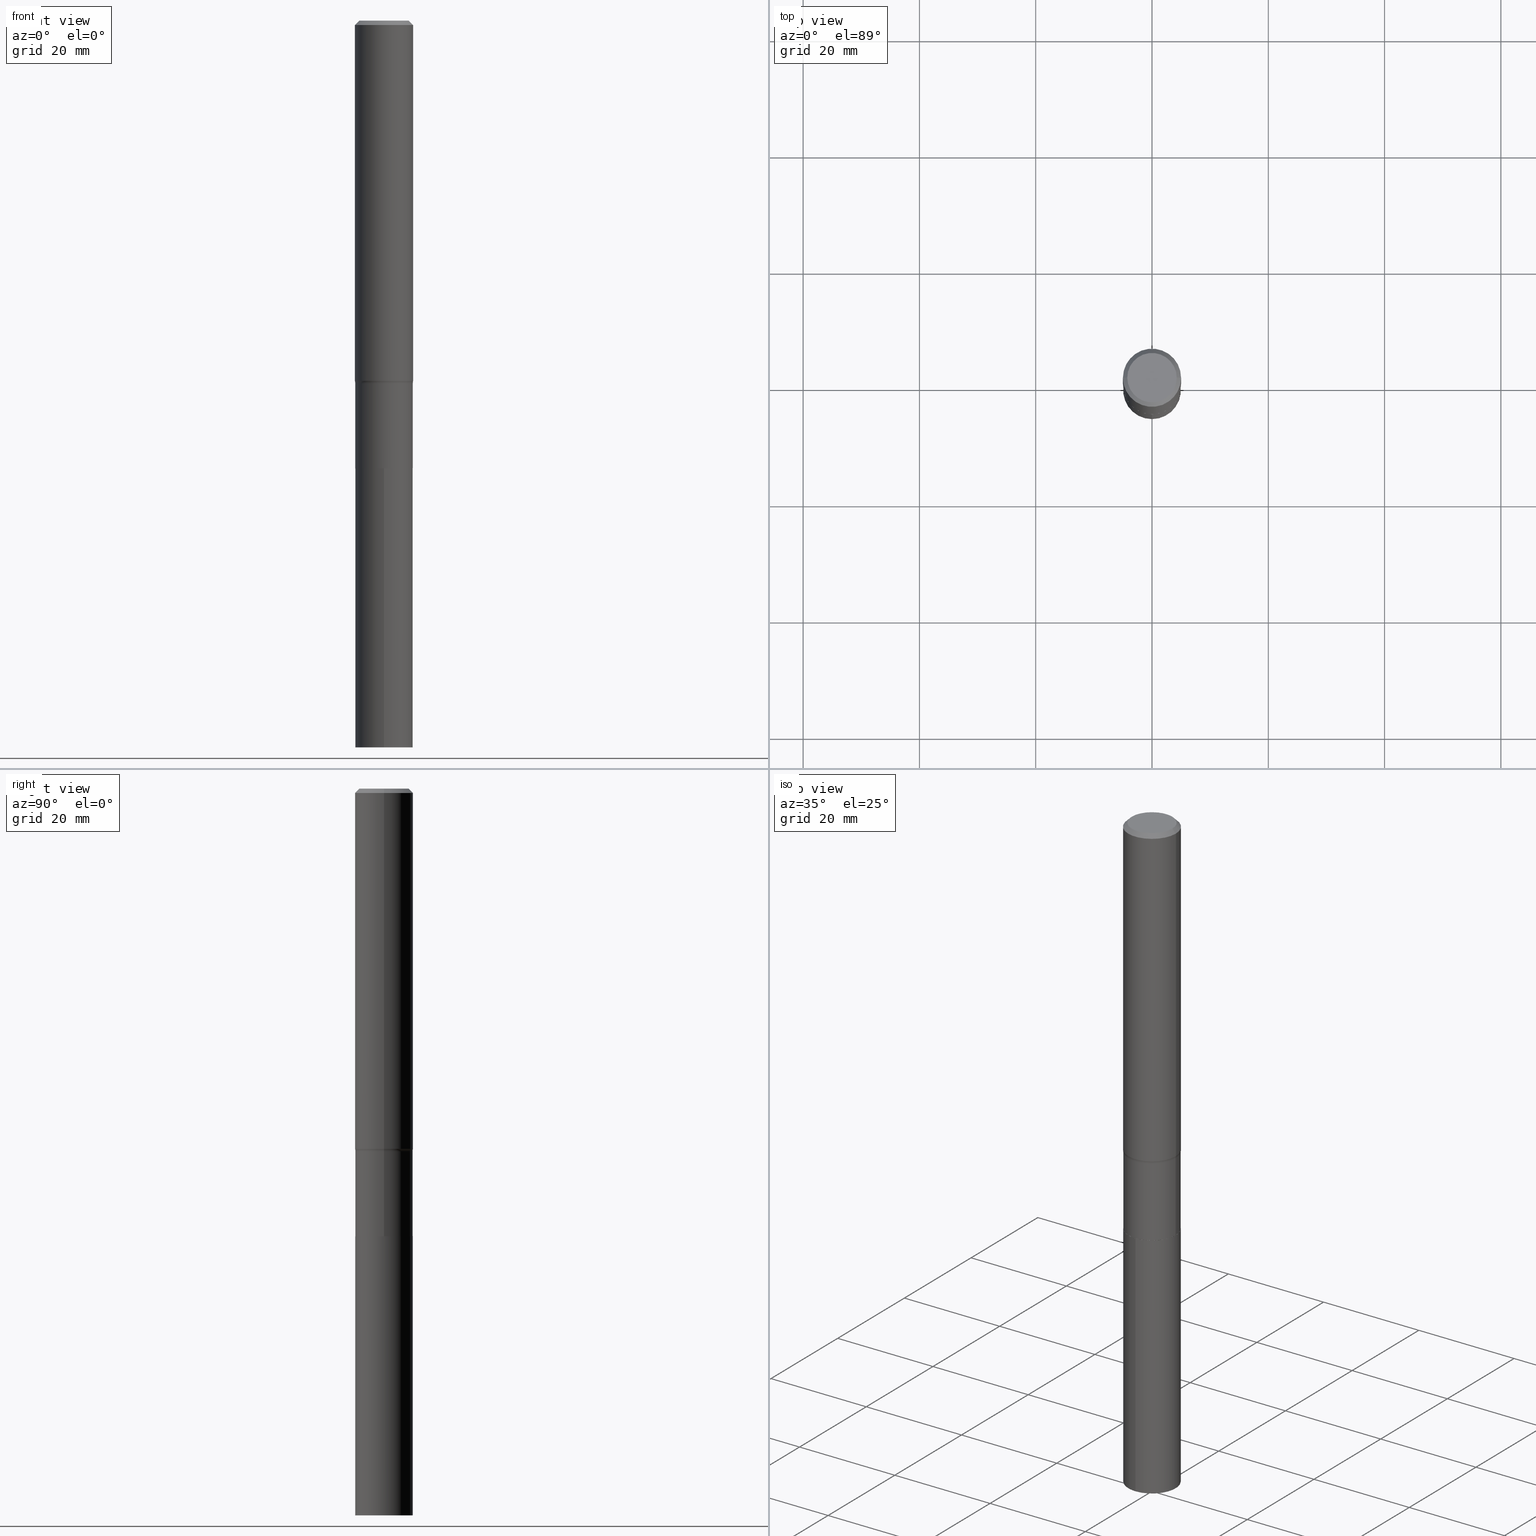
[diagram: canonical four-view strip — front | top / right | iso, engineering-drawing reading convention]
A machine part, canonical four-view strip (front | top / right | iso — engineering-drawing reading convention). The complete STEP part file that produces these views, byte-faithful:
ISO-10303-21;
HEADER;
FILE_DESCRIPTION (( 'STEP AP203' ),
    '1' );
FILE_NAME ('67887.STEP',
    '2024-04-19T16:55:54',
    ( '' ),
    ( '' ),
    'SwSTEP 2.0',
    'SolidWorks 2023',
    '' );
FILE_SCHEMA (( 'CONFIG_CONTROL_DESIGN' ));
ENDSEC;

DATA;
#1 = DIRECTION ( 'NONE',  ( -2.445468806185136597E-29, 3.491481338843145583E-15, 1.000000000000000000 ) ) ;
#2 = EDGE_CURVE ( 'NONE', #307, #241, #297, .T. ) ;
#3 = AXIS2_PLACEMENT_3D ( 'NONE', #427, #332, #94 ) ;
#4 = AXIS2_PLACEMENT_3D ( 'NONE', #388, #106, #422 ) ;
#5 = DIRECTION ( 'NONE',  ( 1.000000000000000000, -6.982962677686259611E-15, 0.000000000000000000 ) ) ;
#6 = DIRECTION ( 'NONE',  ( -2.445468806185136597E-29, 3.491481338843145583E-15, 1.000000000000000000 ) ) ;
#7 = FACE_OUTER_BOUND ( 'NONE', #313, .T. ) ;
#8 = EDGE_CURVE ( 'NONE', #36, #115, #276, .T. ) ;
#9 = DIRECTION ( 'NONE',  ( -0.7071067811865453523, 2.468850131082234184E-15, -0.7071067811865496822 ) ) ;
#10 = CONICAL_SURFACE ( 'NONE', #303, 0.1943999999999999895, 0.7853981633972775267 ) ;
#11 = LOCAL_TIME ( 12, 55, 54.00000000000000000, #317 ) ;
#12 = DIRECTION ( 'NONE',  ( -2.445468806185136597E-29, 3.491481338843145583E-15, 1.000000000000000000 ) ) ;
#13 = EDGE_CURVE ( 'NONE', #270, #416, #368, .T. ) ;
#14 = FACE_OUTER_BOUND ( 'NONE', #136, .T. ) ;
#15 = ORIENTED_EDGE ( 'NONE', *, *, #32, .F. ) ;
#16 = CC_DESIGN_PERSON_AND_ORGANIZATION_ASSIGNMENT ( #352, #178, ( #121 ) ) ;
#17 = DIRECTION ( 'NONE',  ( -1.000000000000000000, 7.105427357600997914E-15, 0.000000000000000000 ) ) ;
#18 = APPROVAL_DATE_TIME ( #202, #286 ) ;
#19 = VECTOR ( 'NONE', #185, 39.37007874015748143 ) ;
#20 = ORIENTED_EDGE ( 'NONE', *, *, #2, .T. ) ;
#21 = ORIENTED_EDGE ( 'NONE', *, *, #409, .F. ) ;
#22 = CARTESIAN_POINT ( 'NONE',  ( 0.000000000000000000, 0.000000000000000000, 0.000000000000000000 ) ) ;
#23 = CARTESIAN_POINT ( 'NONE',  ( 6.008027763035643175E-29, -8.577871353269839146E-15, -2.456799999999999873 ) ) ;
#24 = DIRECTION ( 'NONE',  ( -2.445468806185136597E-29, 3.491481338843145583E-15, 1.000000000000000000 ) ) ;
#25 = EDGE_LOOP ( 'NONE', ( #280, #452 ) ) ;
#26 = CARTESIAN_POINT ( 'NONE',  ( 0.1948999999999999344, -1.360979425881052894E-15, 9.503668536026277414E-30 ) ) ;
#27 = ORIENTED_EDGE ( 'NONE', *, *, #306, .F. ) ;
#28 = AXIS2_PLACEMENT_3D ( 'NONE', #66, #24, #314 ) ;
#29 = EDGE_LOOP ( 'NONE', ( #411, #135, #170, #184 ) ) ;
#30 = ORIENTED_EDGE ( 'NONE', *, *, #445, .F. ) ;
#31 = DIRECTION ( 'NONE',  ( 2.445468806185136597E-29, -3.491481338843145583E-15, -1.000000000000000000 ) ) ;
#32 = EDGE_CURVE ( 'NONE', #34, #115, #176, .T. ) ;
#33 = CARTESIAN_POINT ( 'NONE',  ( 6.008027763035643175E-29, -8.577871353269839146E-15, -2.456799999999999873 ) ) ;
#34 = VERTEX_POINT ( 'NONE', #38 ) ;
#35 = CC_DESIGN_PERSON_AND_ORGANIZATION_ASSIGNMENT ( #253, #390, ( #298 ) ) ;
#36 = VERTEX_POINT ( 'NONE', #290 ) ;
#37 = VECTOR ( 'NONE', #394, 39.37007874015748143 ) ;
#38 = CARTESIAN_POINT ( 'NONE',  ( 0.1968500000000003303, -9.891172664826294866E-15, -2.439244445323486055 ) ) ;
#39 = CARTESIAN_POINT ( 'NONE',  ( 5.965096201698950370E-29, -8.516576461723751680E-15, -2.439244445323486055 ) ) ;
#40 = CARTESIAN_POINT ( 'NONE',  ( -0.1968500000000001915, 1.398703375343758577E-15, -9.682923725166790684E-30 ) ) ;
#41 = FACE_OUTER_BOUND ( 'NONE', #279, .T. ) ;
#42 = APPROVAL_STATUS ( 'not_yet_approved' ) ;
#43 = APPROVAL_STATUS ( 'not_yet_approved' ) ;
#44 = DIRECTION ( 'NONE',  ( -2.445468806185136597E-29, 3.491481338843145583E-15, 1.000000000000000000 ) ) ;
#45 = LOCAL_TIME ( 12, 55, 54.00000000000000000, #374 ) ;
#46 = EDGE_CURVE ( 'NONE', #416, #270, #362, .T. ) ;
#47 = ADVANCED_FACE ( 'NONE', ( #95 ), #420, .T. ) ;
#48 = APPROVAL_ROLE ( '' ) ;
#49 = CARTESIAN_POINT ( 'NONE',  ( 7.412949592189004141E-29, -1.058372738243522642E-14, -3.031299999999999883 ) ) ;
#50 = CC_DESIGN_APPROVAL ( #432, ( #268 ) ) ;
#51 = CARTESIAN_POINT ( 'NONE',  ( -0.1968500000000003303, -7.117873086379991526E-15, -2.439244445323486055 ) ) ;
#52 = ORIENTED_EDGE ( 'NONE', *, *, #186, .F. ) ;
#53 = CARTESIAN_POINT ( 'NONE',  ( -0.1948999999999999344, 1.384847791996434796E-15, -9.587004490906808522E-30 ) ) ;
#54 = ORIENTED_EDGE ( 'NONE', *, *, #451, .T. ) ;
#55 = VERTEX_POINT ( 'NONE', #301 ) ;
#56 = ORIENTED_EDGE ( 'NONE', *, *, #112, .T. ) ;
#57 = CALENDAR_DATE ( 2024, 19, 4 ) ;
#58 = AXIS2_PLACEMENT_3D ( 'NONE', #327, #119, #293 ) ;
#59 =( NAMED_UNIT ( * ) SI_UNIT ( $, .STERADIAN. ) SOLID_ANGLE_UNIT ( ) );
#60 = CIRCLE ( 'NONE', #227, 0.1943999999999999895 ) ;
#61 = DIRECTION ( 'NONE',  ( 1.000000000000000000, -6.982962677686267499E-15, 4.876294436782262290E-29 ) ) ;
#62 = EDGE_CURVE ( 'NONE', #34, #307, #158, .T. ) ;
#63 = LINE ( 'NONE', #53, #329 ) ;
#64 = EDGE_LOOP ( 'NONE', ( #172, #449, #273, #27 ) ) ;
#65 = APPLICATION_PROTOCOL_DEFINITION ( 'international standard', 'config_control_design', 1994, #165 ) ;
#66 = CARTESIAN_POINT ( 'NONE',  ( 7.411726857785911339E-29, -1.058198164176580413E-14, -3.030799999999999716 ) ) ;
#67 = COORDINATED_UNIVERSAL_TIME_OFFSET ( 5, 0, .BEHIND. ) ;
#68 = EDGE_CURVE ( 'NONE', #211, #416, #255, .T. ) ;
#69 = VECTOR ( 'NONE', #439, 39.37007874015748143 ) ;
#70 = AXIS2_PLACEMENT_3D ( 'NONE', #275, #133, #234 ) ;
#71 = FACE_OUTER_BOUND ( 'NONE', #446, .T. ) ;
#72 = CARTESIAN_POINT ( 'NONE',  ( -1.001697619218021790E-46, 1.430158722866389718E-32, 4.096137381448108366E-18 ) ) ;
#73 = ORIENTED_EDGE ( 'NONE', *, *, #440, .F. ) ;
#74 = EDGE_CURVE ( 'NONE', #351, #34, #285, .T. ) ;
#75 = CARTESIAN_POINT ( 'NONE',  ( 7.412949592189004141E-29, -1.058372738243522642E-14, -3.031299999999999883 ) ) ;
#76 = AXIS2_PLACEMENT_3D ( 'NONE', #281, #418, #17 ) ;
#77 = AXIS2_PLACEMENT_3D ( 'NONE', #173, #175, #244 ) ;
#78 = CALENDAR_DATE ( 2024, 19, 4 ) ;
#79 = CYLINDRICAL_SURFACE ( 'NONE', #152, 0.1948999999999999344 ) ;
#80 = DIRECTION ( 'NONE',  ( 1.000000000000000000, -6.982962677686266711E-15, 4.876176775795936914E-29 ) ) ;
#81 = DATE_AND_TIME ( #399, #311 ) ;
#82 = EDGE_CURVE ( 'NONE', #421, #270, #434, .T. ) ;
#83 = DIRECTION ( 'NONE',  ( -6.982962677686266711E-15, -1.000000000000000000, 3.491481338843145583E-15 ) ) ;
#84 = CIRCLE ( 'NONE', #151, 0.1948999999999999899 ) ;
#85 = FACE_OUTER_BOUND ( 'NONE', #182, .T. ) ;
#86 = AXIS2_PLACEMENT_3D ( 'NONE', #235, #174, #376 ) ;
#87 = DIRECTION ( 'NONE',  ( 1.000000000000000000, -6.982962677686264344E-15, 0.000000000000000000 ) ) ;
#88 = DIRECTION ( 'NONE',  ( 1.000000000000000000, -6.982962677686266711E-15, 4.876176775795935793E-29 ) ) ;
#89 = ADVANCED_FACE ( 'NONE', ( #41 ), #187, .T. ) ;
#90 = DIRECTION ( 'NONE',  ( 1.000000000000000000, -6.982962677686267499E-15, 0.000000000000000000 ) ) ;
#91 = LINE ( 'NONE', #225, #260 ) ;
#92 = CARTESIAN_POINT ( 'NONE',  ( 0.000000000000000000, 0.000000000000000000, 0.000000000000000000 ) ) ;
#93 = EDGE_CURVE ( 'NONE', #55, #192, #84, .T. ) ;
#94 = DIRECTION ( 'NONE',  ( -6.982962677686266711E-15, -1.000000000000000000, 2.803332984776052637E-15 ) ) ;
#95 = FACE_OUTER_BOUND ( 'NONE', #64, .T. ) ;
#96 = FACE_OUTER_BOUND ( 'NONE', #305, .T. ) ;
#97 = VECTOR ( 'NONE', #257, 39.37007874015748143 ) ;
#98 = VECTOR ( 'NONE', #262, 39.37007874015748143 ) ;
#99 = EDGE_LOOP ( 'NONE', ( #218, #375, #341, #20 ) ) ;
#100 = DIRECTION ( 'NONE',  ( -1.000000000000000000, 6.982962677686265922E-15, 0.000000000000000000 ) ) ;
#101 = ORIENTED_EDGE ( 'NONE', *, *, #2, .F. ) ;
#102 = ADVANCED_FACE ( 'NONE', ( #153 ), #10, .T. ) ;
#103 = DATE_AND_TIME ( #78, #179 ) ;
#104 = ORIENTED_EDGE ( 'NONE', *, *, #247, .T. ) ;
#105 =( NAMED_UNIT ( * ) PLANE_ANGLE_UNIT ( ) SI_UNIT ( $, .RADIAN. ) );
#106 = DIRECTION ( 'NONE',  ( -2.445466211599433691E-29, 3.491485054437546873E-15, 1.000000000000000000 ) ) ;
#107 = ADVANCED_FACE ( 'NONE', ( #324 ), #223, .T. ) ;
#108 = DESIGN_CONTEXT ( 'detailed design', #237, 'design' ) ;
#109 = LINE ( 'NONE', #26, #438 ) ;
#110 = PERSON_AND_ORGANIZATION_ROLE ( 'design_supplier' ) ;
#111 = ORIENTED_EDGE ( 'NONE', *, *, #137, .F. ) ;
#112 = EDGE_CURVE ( 'NONE', #34, #351, #245, .T. ) ;
#113 = VECTOR ( 'NONE', #148, 39.37007874015748143 ) ;
#114 = CC_DESIGN_SECURITY_CLASSIFICATION ( #298, ( #268 ) ) ;
#115 = VERTEX_POINT ( 'NONE', #396 ) ;
#116 = DIRECTION ( 'NONE',  ( -1.000000000000000000, 6.982962677686265922E-15, -4.876176775795935793E-29 ) ) ;
#117 = DIRECTION ( 'NONE',  ( -6.982962677686266711E-15, -1.000000000000000000, 2.803332984776052637E-15 ) ) ;
#118 = PRODUCT_DEFINITION ( 'UNKNOWN', '', #268, #108 ) ;
#119 = DIRECTION ( 'NONE',  ( -2.445468806185136597E-29, 3.491481338843145583E-15, 1.000000000000000000 ) ) ;
#120 = AXIS2_PLACEMENT_3D ( 'NONE', #124, #256, #401 ) ;
#121 = PRODUCT ( '67887', '67887', '', ( #302 ) ) ;
#122 = LINE ( 'NONE', #193, #98 ) ;
#123 = ADVANCED_FACE ( 'NONE', ( #337 ), #177, .F. ) ;
#124 = CARTESIAN_POINT ( 'NONE',  ( 7.412949592189004141E-29, -1.058372738243522642E-14, -3.031299999999999883 ) ) ;
#125 = CIRCLE ( 'NONE', #28, 0.1948999999999999899 ) ;
#126 =( GEOMETRIC_REPRESENTATION_CONTEXT ( 3 ) GLOBAL_UNCERTAINTY_ASSIGNED_CONTEXT ( ( #355 ) ) GLOBAL_UNIT_ASSIGNED_CONTEXT ( ( #350, #105, #59 ) ) REPRESENTATION_CONTEXT ( 'NONE', 'WORKASPACE' ) );
#127 = DIRECTION ( 'NONE',  ( -2.445468806185136597E-29, 3.491481338843145583E-15, 1.000000000000000000 ) ) ;
#128 = CARTESIAN_POINT ( 'NONE',  ( 6.008027763035643175E-29, -8.577871353269839146E-15, -2.456799999999999429 ) ) ;
#129 = CARTESIAN_POINT ( 'NONE',  ( 0.1943999999999999895, -1.194121532697743651E-14, -3.031299999999999883 ) ) ;
#130 = CARTESIAN_POINT ( 'NONE',  ( 0.1948999999999999067, -9.938850779150892237E-15, -2.456799999999999873 ) ) ;
#131 = ORIENTED_EDGE ( 'NONE', *, *, #194, .T. ) ;
#132 = CARTESIAN_POINT ( 'NONE',  ( -1.360979425880932790E-15, -0.1949000000000171706, -4.921299999999999564 ) ) ;
#133 = DIRECTION ( 'NONE',  ( -2.445468806185136597E-29, 3.491481338843145583E-15, 1.000000000000000000 ) ) ;
#134 = APPROVAL_ROLE ( '' ) ;
#135 = ORIENTED_EDGE ( 'NONE', *, *, #137, .T. ) ;
#136 = EDGE_LOOP ( 'NONE', ( #73, #111 ) ) ;
#137 = EDGE_CURVE ( 'NONE', #421, #211, #342, .T. ) ;
#138 = EDGE_LOOP ( 'NONE', ( #357, #410, #386, #348 ) ) ;
#139 = ORIENTED_EDGE ( 'NONE', *, *, #393, .T. ) ;
#140 = DIRECTION ( 'NONE',  ( 1.000000000000000000, -6.982962677686266711E-15, 4.876176775795935793E-29 ) ) ;
#141 = ORIENTED_EDGE ( 'NONE', *, *, #68, .F. ) ;
#142 = AXIS2_PLACEMENT_3D ( 'NONE', #128, #264, #169 ) ;
#143 = CIRCLE ( 'NONE', #261, 0.1673224999999999851 ) ;
#144 = CARTESIAN_POINT ( 'NONE',  ( 0.1968500000000000250, -1.453583746094017706E-15, -0.02952750000000019942 ) ) ;
#145 = ORIENTED_EDGE ( 'NONE', *, *, #398, .F. ) ;
#146 = LENGTH_MEASURE_WITH_UNIT ( LENGTH_MEASURE( 0.02539999999999999897 ), #381 );
#147 = CARTESIAN_POINT ( 'NONE',  ( 7.412949592189004141E-29, -1.058372738243522642E-14, -3.031299999999999883 ) ) ;
#148 = DIRECTION ( 'NONE',  ( 0.7071067811865453523, -7.319954787623248157E-15, -0.7071067811865496822 ) ) ;
#149 = FACE_OUTER_BOUND ( 'NONE', #461, .T. ) ;
#150 = CALENDAR_DATE ( 2024, 19, 4 ) ;
#151 = AXIS2_PLACEMENT_3D ( 'NONE', #250, #6, #87 ) ;
#152 = AXIS2_PLACEMENT_3D ( 'NONE', #92, #12, #292 ) ;
#153 = FACE_OUTER_BOUND ( 'NONE', #457, .T. ) ;
#154 = EDGE_CURVE ( 'NONE', #363, #192, #91, .T. ) ;
#155 = ORIENTED_EDGE ( 'NONE', *, *, #93, .T. ) ;
#156 = DIRECTION ( 'NONE',  ( 1.000000000000000000, -6.982962677686267499E-15, 0.000000000000000000 ) ) ;
#157 = SECURITY_CLASSIFICATION_LEVEL ( 'unclassified' ) ;
#158 = CIRCLE ( 'NONE', #221, 0.08000000000000000167 ) ;
#159 = SHAPE_DEFINITION_REPRESENTATION ( #408, #326 ) ;
#160 = CARTESIAN_POINT ( 'NONE',  ( 1.384847791996555886E-15, 0.1948999999999894428, -3.031300000000000328 ) ) ;
#161 = CYLINDRICAL_SURFACE ( 'NONE', #189, 0.1968500000000001915 ) ;
#162 = DIRECTION ( 'NONE',  ( 1.000000000000000000, -6.982962677686267499E-15, 0.000000000000000000 ) ) ;
#163 = AXIS2_PLACEMENT_3D ( 'NONE', #370, #198, #168 ) ;
#164 = LINE ( 'NONE', #442, #287 ) ;
#165 = APPLICATION_CONTEXT ( 'configuration controlled 3d designs of mechanical parts and assemblies' ) ;
#166 = DIRECTION ( 'NONE',  ( -6.982962677686265922E-15, -1.000000000000000000, 3.491485054437547267E-15 ) ) ;
#167 = ORIENTED_EDGE ( 'NONE', *, *, #282, .F. ) ;
#168 = DIRECTION ( 'NONE',  ( -1.000000000000000000, 6.982962677686265922E-15, 0.000000000000000000 ) ) ;
#169 = DIRECTION ( 'NONE',  ( 1.000000000000000000, -6.982962677686265922E-15, 4.883557194083112340E-29 ) ) ;
#170 = ORIENTED_EDGE ( 'NONE', *, *, #68, .T. ) ;
#171 = DIRECTION ( 'NONE',  ( 1.000000000000000000, -6.982962677686267499E-15, 0.000000000000000000 ) ) ;
#172 = ORIENTED_EDGE ( 'NONE', *, *, #247, .F. ) ;
#173 = CARTESIAN_POINT ( 'NONE',  ( 7.220858017463210361E-31, -1.030947152326916856E-16, -0.02952750000000019942 ) ) ;
#174 = DIRECTION ( 'NONE',  ( 0.000000000000000000, 0.000000000000000000, 1.000000000000000000 ) ) ;
#175 = DIRECTION ( 'NONE',  ( -2.445468806185136597E-29, 3.491481338843145583E-15, 1.000000000000000000 ) ) ;
#176 = LINE ( 'NONE', #249, #37 ) ;
#177 = TOROIDAL_SURFACE ( 'NONE', #142, 0.2748999999999999222, 0.08000000000000000167 ) ;
#178 = PERSON_AND_ORGANIZATION_ROLE ( 'design_owner' ) ;
#179 = LOCAL_TIME ( 12, 55, 54.00000000000000000, #431 ) ;
#180 = DATE_TIME_ROLE ( 'creation_date' ) ;
#181 = CARTESIAN_POINT ( 'NONE',  ( -0.1948999999999999899, -8.195078705521387433E-15, -3.030799999999999716 ) ) ;
#182 = EDGE_LOOP ( 'NONE', ( #373, #462 ) ) ;
#183 = EDGE_CURVE ( 'NONE', #363, #391, #60, .T. ) ;
#184 = ORIENTED_EDGE ( 'NONE', *, *, #13, .F. ) ;
#185 = DIRECTION ( 'NONE',  ( -2.445466211599433971E-29, 3.491485054437547267E-15, 1.000000000000000000 ) ) ;
#186 = EDGE_CURVE ( 'NONE', #192, #55, #125, .T. ) ;
#187 = CYLINDRICAL_SURFACE ( 'NONE', #454, 0.1948999999999999344 ) ;
#188 = ADVANCED_FACE ( 'NONE', ( #71 ), #319, .T. ) ;
#189 = AXIS2_PLACEMENT_3D ( 'NONE', #258, #295, #88 ) ;
#190 = COORDINATED_UNIVERSAL_TIME_OFFSET ( 5, 0, .BEHIND. ) ;
#191 = FACE_OUTER_BOUND ( 'NONE', #201, .T. ) ;
#192 = VERTEX_POINT ( 'NONE', #181 ) ;
#193 = CARTESIAN_POINT ( 'NONE',  ( 0.1943999999999999895, -1.194121532697743651E-14, -3.031299999999999883 ) ) ;
#194 = EDGE_CURVE ( 'NONE', #351, #236, #318, .T. ) ;
#195 = DIRECTION ( 'NONE',  ( -2.445468806185136597E-29, 3.491481338843145583E-15, 1.000000000000000000 ) ) ;
#196 = CONICAL_SURFACE ( 'NONE', #343, 0.1943999999999999895, 0.7853981633972775267 ) ;
#197 = DIRECTION ( 'NONE',  ( 1.000000000000000000, -6.982962677686265922E-15, 0.000000000000000000 ) ) ;
#198 = DIRECTION ( 'NONE',  ( 2.445468806185136597E-29, -3.491481338843145583E-15, -1.000000000000000000 ) ) ;
#199 = DIRECTION ( 'NONE',  ( -2.445466211599433691E-29, 3.491485054437546873E-15, 1.000000000000000000 ) ) ;
#200 = CARTESIAN_POINT ( 'NONE',  ( -0.1673224999999999851, 1.219954130253505263E-15, 4.096137381439757534E-18 ) ) ;
#201 = EDGE_LOOP ( 'NONE', ( #453, #372, #458, #141 ) ) ;
#202 = DATE_AND_TIME ( #57, #45 ) ;
#203 = APPROVAL_DATE_TIME ( #103, #432 ) ;
#204 = AXIS2_PLACEMENT_3D ( 'NONE', #433, #336, #166 ) ;
#205 = FACE_OUTER_BOUND ( 'NONE', #382, .T. ) ;
#206 = PERSON_AND_ORGANIZATION ( #356, #387 ) ;
#207 = ORIENTED_EDGE ( 'NONE', *, *, #154, .F. ) ;
#208 = AXIS2_PLACEMENT_3D ( 'NONE', #39, #1, #428 ) ;
#209 = CIRCLE ( 'NONE', #77, 0.1968500000000000250 ) ;
#210 = EDGE_LOOP ( 'NONE', ( #230, #415, #443, #323 ) ) ;
#211 = VERTEX_POINT ( 'NONE', #132 ) ;
#212 = DIRECTION ( 'NONE',  ( -2.445468806185136597E-29, 3.491481338843145583E-15, 1.000000000000000000 ) ) ;
#213 = DIRECTION ( 'NONE',  ( -2.445468806185136597E-29, 3.491481338843145583E-15, 1.000000000000000000 ) ) ;
#214 = ADVANCED_FACE ( 'NONE', ( #331 ), #161, .T. ) ;
#215 = ORIENTED_EDGE ( 'NONE', *, *, #8, .F. ) ;
#216 = AXIS2_PLACEMENT_3D ( 'NONE', #284, #424, #117 ) ;
#217 = DIRECTION ( 'NONE',  ( -2.445468806185136597E-29, 3.491481338843145583E-15, 1.000000000000000000 ) ) ;
#218 = ORIENTED_EDGE ( 'NONE', *, *, #219, .F. ) ;
#219 = EDGE_CURVE ( 'NONE', #351, #241, #378, .T. ) ;
#220 = PLANE ( 'NONE',  #204 ) ;
#221 = AXIS2_PLACEMENT_3D ( 'NONE', #444, #83, #5 ) ;
#222 = DIRECTION ( 'NONE',  ( 1.000000000000000000, -6.982962677686267499E-15, 4.876294436782262290E-29 ) ) ;
#223 = CYLINDRICAL_SURFACE ( 'NONE', #467, 0.1948999999999999899 ) ;
#224 = DIRECTION ( 'NONE',  ( -2.438088387897960049E-29, 3.491481338843145188E-15, 1.000000000000000000 ) ) ;
#225 = CARTESIAN_POINT ( 'NONE',  ( -0.1943999999999999895, -9.202432304117592326E-15, -3.031299999999999883 ) ) ;
#226 = PERSON_AND_ORGANIZATION ( #356, #387 ) ;
#227 = AXIS2_PLACEMENT_3D ( 'NONE', #49, #195, #171 ) ;
#228 = AXIS2_PLACEMENT_3D ( 'NONE', #404, #224, #299 ) ;
#229 = CARTESIAN_POINT ( 'NONE',  ( 7.412949592189004141E-29, -1.058372738243522642E-14, -3.031299999999999883 ) ) ;
#230 = ORIENTED_EDGE ( 'NONE', *, *, #194, .F. ) ;
#231 = APPROVAL_STATUS ( 'not_yet_approved' ) ;
#232 = ADVANCED_FACE ( 'NONE', ( #205 ), #346, .T. ) ;
#233 = MANIFOLD_SOLID_BREP ( 'Body-Move/Copy2[1]', #309 ) ;
#234 = DIRECTION ( 'NONE',  ( 1.000000000000000000, -6.982962677686267499E-15, 0.000000000000000000 ) ) ;
#235 = CARTESIAN_POINT ( 'NONE',  ( 0.000000000000000000, 0.000000000000000000, 0.000000000000000000 ) ) ;
#236 = VERTEX_POINT ( 'NONE', #413 ) ;
#237 = APPLICATION_CONTEXT ( 'configuration controlled 3d designs of mechanical parts and assemblies' ) ;
#238 = ORIENTED_EDGE ( 'NONE', *, *, #154, .T. ) ;
#239 = AXIS2_PLACEMENT_3D ( 'NONE', #33, #213, #289 ) ;
#240 = CIRCLE ( 'NONE', #369, 0.1948999999999999067 ) ;
#241 = VERTEX_POINT ( 'NONE', #349 ) ;
#242 = ORIENTED_EDGE ( 'NONE', *, *, #93, .F. ) ;
#243 = DATE_AND_TIME ( #384, #272 ) ;
#244 = DIRECTION ( 'NONE',  ( 1.000000000000000000, -6.982962677686265922E-15, 0.000000000000000000 ) ) ;
#245 = CIRCLE ( 'NONE', #208, 0.1968500000000003580 ) ;
#246 = AXIS2_PLACEMENT_3D ( 'NONE', #265, #405, #333 ) ;
#247 = EDGE_CURVE ( 'NONE', #36, #345, #437, .T. ) ;
#248 = CC_DESIGN_DATE_AND_TIME_ASSIGNMENT ( #243, #180, ( #118 ) ) ;
#249 = CARTESIAN_POINT ( 'NONE',  ( 0.1968500000000001915, -1.374596203102542989E-15, 9.598753983154309266E-30 ) ) ;
#250 = CARTESIAN_POINT ( 'NONE',  ( 7.411726857785911339E-29, -1.058198164176580413E-14, -3.030799999999999716 ) ) ;
#251 = APPROVAL_PERSON_ORGANIZATION ( #226, #432, #392 ) ;
#252 = CC_DESIGN_PERSON_AND_ORGANIZATION_ASSIGNMENT ( #347, #277, ( #118 ) ) ;
#253 = PERSON_AND_ORGANIZATION ( #356, #387 ) ;
#254 = CARTESIAN_POINT ( 'NONE',  ( -1.001697619218021790E-46, 1.430158722866389718E-32, 4.096137381448108366E-18 ) ) ;
#255 = LINE ( 'NONE', #330, #19 ) ;
#256 = DIRECTION ( 'NONE',  ( -2.445466211599433691E-29, 3.491485054437546873E-15, 1.000000000000000000 ) ) ;
#257 = DIRECTION ( 'NONE',  ( -2.445466211599433971E-29, 3.491485054437547267E-15, 1.000000000000000000 ) ) ;
#258 = CARTESIAN_POINT ( 'NONE',  ( 0.000000000000000000, 0.000000000000000000, 0.000000000000000000 ) ) ;
#259 = EDGE_CURVE ( 'NONE', #236, #115, #395, .T. ) ;
#260 = VECTOR ( 'NONE', #365, 39.37007874015748143 ) ;
#261 = AXIS2_PLACEMENT_3D ( 'NONE', #72, #212, #61 ) ;
#262 = DIRECTION ( 'NONE',  ( 0.7071067811864267805, -2.468850131080992517E-15, 0.7071067811866682540 ) ) ;
#263 = DATE_TIME_ROLE ( 'classification_date' ) ;
#264 = DIRECTION ( 'NONE',  ( -2.445468806185136597E-29, 3.491481338843145583E-15, 1.000000000000000000 ) ) ;
#265 = CARTESIAN_POINT ( 'NONE',  ( 6.008027763035643175E-29, -8.577871353269839146E-15, -2.456799999999999429 ) ) ;
#266 = ADVANCED_FACE ( 'NONE', ( #436 ), #79, .T. ) ;
#267 = ORIENTED_EDGE ( 'NONE', *, *, #183, .T. ) ;
#268 = PRODUCT_DEFINITION_FORMATION_WITH_SPECIFIED_SOURCE ( 'ANY', '', #121, .NOT_KNOWN. ) ;
#269 = DIMENSIONAL_EXPONENTS ( 1.000000000000000000, 0.000000000000000000, 0.000000000000000000, 0.000000000000000000, 0.000000000000000000, 0.000000000000000000, 0.000000000000000000 ) ;
#270 = VERTEX_POINT ( 'NONE', #160 ) ;
#271 = CLOSED_SHELL ( 'NONE', ( #102, #47, #232, #338, #89, #266, #123, #214, #188, #414, #360, #344 ) ) ;
#272 = LOCAL_TIME ( 12, 55, 54.00000000000000000, #67 ) ;
#273 = ORIENTED_EDGE ( 'NONE', *, *, #409, .T. ) ;
#274 = DIRECTION ( 'NONE',  ( -2.445468806185136877E-29, 3.491481338843145188E-15, 1.000000000000000000 ) ) ;
#275 = CARTESIAN_POINT ( 'NONE',  ( 7.412949592189004141E-29, -1.058372738243522642E-14, -3.031299999999999883 ) ) ;
#276 = LINE ( 'NONE', #144, #113 ) ;
#277 = PERSON_AND_ORGANIZATION_ROLE ( 'creator' ) ;
#278 = PERSON_AND_ORGANIZATION ( #356, #387 ) ;
#279 = EDGE_LOOP ( 'NONE', ( #155, #417, #101, #145 ) ) ;
#280 = ORIENTED_EDGE ( 'NONE', *, *, #46, .T. ) ;
#281 = CARTESIAN_POINT ( 'NONE',  ( -0.2748999999999999222, -6.624589372665323499E-15, -2.456799999999999429 ) ) ;
#282 = EDGE_CURVE ( 'NONE', #391, #55, #122, .T. ) ;
#283 = DIRECTION ( 'NONE',  ( 2.445466211599433131E-29, -3.491485054437547267E-15, -1.000000000000000000 ) ) ;
#284 = CARTESIAN_POINT ( 'NONE',  ( 7.412949592189004141E-29, -1.058372738243522642E-14, -3.031299999999999883 ) ) ;
#285 = CIRCLE ( 'NONE', #58, 0.1968500000000003580 ) ;
#286 = APPROVAL ( #231, 'UNSPECIFIED' ) ;
#287 = VECTOR ( 'NONE', #9, 39.37007874015748143 ) ;
#288 = FACE_OUTER_BOUND ( 'NONE', #25, .T. ) ;
#289 = DIRECTION ( 'NONE',  ( 1.000000000000000000, -6.982962677686267499E-15, 0.000000000000000000 ) ) ;
#290 = CARTESIAN_POINT ( 'NONE',  ( 0.1673224999999999851, -1.300749711163072397E-15, 4.096137381456741925E-18 ) ) ;
#291 = CARTESIAN_POINT ( 'NONE',  ( 1.384847791996509146E-15, 0.1948999999999893873, -3.031300000000000328 ) ) ;
#292 = DIRECTION ( 'NONE',  ( 1.000000000000000000, -6.982962677686266711E-15, 4.876176775795936914E-29 ) ) ;
#293 = DIRECTION ( 'NONE',  ( 1.000000000000000000, -6.982962677686265922E-15, 0.000000000000000000 ) ) ;
#294 = ADVANCED_FACE ( 'NONE', ( #14 ), #220, .F. ) ;
#295 = DIRECTION ( 'NONE',  ( -2.445468806185136597E-29, 3.491481338843145583E-15, 1.000000000000000000 ) ) ;
#296 = PLANE ( 'NONE',  #228 ) ;
#297 = CIRCLE ( 'NONE', #239, 0.1948999999999999067 ) ;
#298 = SECURITY_CLASSIFICATION ( '', '', #157 ) ;
#299 = DIRECTION ( 'NONE',  ( 1.000000000000000000, -6.982962677686265922E-15, 4.876176775795935793E-29 ) ) ;
#300 = PERSON_AND_ORGANIZATION ( #356, #387 ) ;
#301 = CARTESIAN_POINT ( 'NONE',  ( 0.1948999999999999899, -1.194296106764685722E-14, -3.030799999999999716 ) ) ;
#302 = MECHANICAL_CONTEXT ( 'NONE', #165, 'mechanical' ) ;
#303 = AXIS2_PLACEMENT_3D ( 'NONE', #75, #217, #156 ) ;
#304 = CIRCLE ( 'NONE', #70, 0.1943999999999999895 ) ;
#305 = EDGE_LOOP ( 'NONE', ( #207, #267, #412, #52 ) ) ;
#306 = EDGE_CURVE ( 'NONE', #345, #236, #164, .T. ) ;
#307 = VERTEX_POINT ( 'NONE', #130 ) ;
#308 = CARTESIAN_POINT ( 'NONE',  ( -5.008488096090108951E-47, 7.150793614331948590E-33, 2.048068690724054183E-18 ) ) ;
#309 = CLOSED_SHELL ( 'NONE', ( #315, #294, #107, #423 ) ) ;
#310 = ORIENTED_EDGE ( 'NONE', *, *, #219, .T. ) ;
#311 = LOCAL_TIME ( 12, 55, 54.00000000000000000, #190 ) ;
#312 = APPLICATION_PROTOCOL_DEFINITION ( 'international standard', 'config_control_design', 1994, #237 ) ;
#313 = EDGE_LOOP ( 'NONE', ( #448, #310, #54, #397 ) ) ;
#314 = DIRECTION ( 'NONE',  ( 1.000000000000000000, -6.982962677686264344E-15, 0.000000000000000000 ) ) ;
#315 = ADVANCED_FACE ( 'NONE', ( #191 ), #361, .T. ) ;
#316 = CARTESIAN_POINT ( 'NONE',  ( 1.384847791996532221E-15, 0.1948999999999828092, -4.921300000000002228 ) ) ;
#317 = COORDINATED_UNIVERSAL_TIME_OFFSET ( 5, 0, .BEHIND. ) ;
#318 = LINE ( 'NONE', #40, #69 ) ;
#319 = CONICAL_SURFACE ( 'NONE', #328, 0.1968500000000000250, 0.7853981633974452814 ) ;
#320 = DIRECTION ( 'NONE',  ( -2.445466211599433691E-29, 3.491485054437546873E-15, 1.000000000000000000 ) ) ;
#321 = APPROVAL_PERSON_ORGANIZATION ( #300, #379, #48 ) ;
#322 = DATE_AND_TIME ( #150, #11 ) ;
#323 = ORIENTED_EDGE ( 'NONE', *, *, #259, .F. ) ;
#324 = FACE_OUTER_BOUND ( 'NONE', #29, .T. ) ;
#325 = CC_DESIGN_PERSON_AND_ORGANIZATION_ASSIGNMENT ( #278, #110, ( #268 ) ) ;
#326 = ADVANCED_BREP_SHAPE_REPRESENTATION ( '67887', ( #233, #389, #86 ), #126 ) ;
#327 = CARTESIAN_POINT ( 'NONE',  ( 5.965096201698950370E-29, -8.516576461723751680E-15, -2.439244445323486055 ) ) ;
#328 = AXIS2_PLACEMENT_3D ( 'NONE', #354, #31, #100 ) ;
#329 = VECTOR ( 'NONE', #274, 39.37007874015748143 ) ;
#330 = CARTESIAN_POINT ( 'NONE',  ( -1.360979425880978939E-15, -0.1949000000000105648, -3.031299999999999439 ) ) ;
#331 = FACE_OUTER_BOUND ( 'NONE', #210, .T. ) ;
#332 = DIRECTION ( 'NONE',  ( -2.445466211599433691E-29, 3.491485054437546873E-15, 1.000000000000000000 ) ) ;
#333 = DIRECTION ( 'NONE',  ( 1.000000000000000000, -6.982962677686265922E-15, 4.883557194083112340E-29 ) ) ;
#334 = CC_DESIGN_DATE_AND_TIME_ASSIGNMENT ( #322, #263, ( #298 ) ) ;
#335 = CARTESIAN_POINT ( 'NONE',  ( 1.203488073211193522E-28, -1.718263413532219501E-14, -4.921300000000000452 ) ) ;
#336 = DIRECTION ( 'NONE',  ( -2.445466211599433131E-29, 3.491485054437547267E-15, 1.000000000000000000 ) ) ;
#337 = FACE_OUTER_BOUND ( 'NONE', #99, .T. ) ;
#338 = ADVANCED_FACE ( 'NONE', ( #7 ), #403, .F. ) ;
#339 = AXIS2_PLACEMENT_3D ( 'NONE', #254, #127, #222 ) ;
#340 = AXIS2_PLACEMENT_3D ( 'NONE', #147, #283, #419 ) ;
#341 = ORIENTED_EDGE ( 'NONE', *, *, #62, .T. ) ;
#342 = CIRCLE ( 'NONE', #429, 0.1948999999999999899 ) ;
#343 = AXIS2_PLACEMENT_3D ( 'NONE', #229, #371, #90 ) ;
#344 = ADVANCED_FACE ( 'NONE', ( #96 ), #196, .T. ) ;
#345 = VERTEX_POINT ( 'NONE', #200 ) ;
#346 = CYLINDRICAL_SURFACE ( 'NONE', #358, 0.1968500000000001915 ) ;
#347 = PERSON_AND_ORGANIZATION ( #356, #387 ) ;
#348 = ORIENTED_EDGE ( 'NONE', *, *, #451, .F. ) ;
#349 = CARTESIAN_POINT ( 'NONE',  ( -0.1948999999999999067, -8.195078705521387433E-15, -2.456799999999999873 ) ) ;
#350 =( CONVERSION_BASED_UNIT ( 'INCH', #146 ) LENGTH_UNIT ( ) NAMED_UNIT ( #269 ) );
#351 = VERTEX_POINT ( 'NONE', #51 ) ;
#352 = PERSON_AND_ORGANIZATION ( #356, #387 ) ;
#353 = DIRECTION ( 'NONE',  ( 2.438088387897960049E-29, -3.491481338843145188E-15, -1.000000000000000000 ) ) ;
#354 = CARTESIAN_POINT ( 'NONE',  ( 7.220858017463210361E-31, -1.030947152326916856E-16, -0.02952750000000019942 ) ) ;
#355 = UNCERTAINTY_MEASURE_WITH_UNIT (LENGTH_MEASURE( 1.000000000000000082E-05 ), #350, 'distance_accuracy_value', 'NONE');
#356 = PERSON ( 'UNSPECIFIED', 'UNSPECIFIED', 'UNSPECIFIED', ('UNSPECIFIED'), ('UNSPECIFIED'), ('UNSPECIFIED') ) ;
#357 = ORIENTED_EDGE ( 'NONE', *, *, #465, .F. ) ;
#358 = AXIS2_PLACEMENT_3D ( 'NONE', #22, #450, #140 ) ;
#359 = AXIS2_PLACEMENT_3D ( 'NONE', #308, #353, #116 ) ;
#360 = ADVANCED_FACE ( 'NONE', ( #85 ), #296, .F. ) ;
#361 = CYLINDRICAL_SURFACE ( 'NONE', #120, 0.1948999999999999899 ) ;
#362 = CIRCLE ( 'NONE', #3, 0.1948999999999999899 ) ;
#363 = VERTEX_POINT ( 'NONE', #441 ) ;
#364 = CARTESIAN_POINT ( 'NONE',  ( 7.412949592189004141E-29, -1.058372738243522642E-14, -3.031299999999999883 ) ) ;
#365 = DIRECTION ( 'NONE',  ( -0.7071067811864267805, 7.493145998869918709E-15, 0.7071067811866682540 ) ) ;
#366 = CARTESIAN_POINT ( 'NONE',  ( 7.220858017463210361E-31, -1.030947152326916856E-16, -0.02952750000000019942 ) ) ;
#367 = CC_DESIGN_PERSON_AND_ORGANIZATION_ASSIGNMENT ( #206, #460, ( #268 ) ) ;
#368 = CIRCLE ( 'NONE', #216, 0.1948999999999999899 ) ;
#369 = AXIS2_PLACEMENT_3D ( 'NONE', #23, #426, #162 ) ;
#370 = CARTESIAN_POINT ( 'NONE',  ( 7.220858017463210361E-31, -1.030947152326916856E-16, -0.02952750000000019942 ) ) ;
#371 = DIRECTION ( 'NONE',  ( -2.445468806185136597E-29, 3.491481338843145583E-15, 1.000000000000000000 ) ) ;
#372 = ORIENTED_EDGE ( 'NONE', *, *, #82, .T. ) ;
#373 = ORIENTED_EDGE ( 'NONE', *, *, #393, .F. ) ;
#374 = COORDINATED_UNIVERSAL_TIME_OFFSET ( 5, 0, .BEHIND. ) ;
#375 = ORIENTED_EDGE ( 'NONE', *, *, #112, .F. ) ;
#376 = DIRECTION ( 'NONE',  ( 1.000000000000000000, 0.000000000000000000, 0.000000000000000000 ) ) ;
#377 = CARTESIAN_POINT ( 'NONE',  ( -1.360979425880978939E-15, -0.1949000000000105648, -3.031299999999999439 ) ) ;
#378 = CIRCLE ( 'NONE', #76, 0.08000000000000000167 ) ;
#379 = APPROVAL ( #43, 'UNSPECIFIED' ) ;
#380 = AXIS2_PLACEMENT_3D ( 'NONE', #366, #44, #197 ) ;
#381 =( LENGTH_UNIT ( ) NAMED_UNIT ( * ) SI_UNIT ( $, .METRE. ) );
#382 = EDGE_LOOP ( 'NONE', ( #56, #131, #21, #15 ) ) ;
#383 = ORIENTED_EDGE ( 'NONE', *, *, #306, .T. ) ;
#384 = CALENDAR_DATE ( 2024, 19, 4 ) ;
#385 = PLANE ( 'NONE',  #359 ) ;
#386 = ORIENTED_EDGE ( 'NONE', *, *, #398, .T. ) ;
#387 = ORGANIZATION ( 'UNSPECIFIED', 'UNSPECIFIED', '' ) ;
#388 = CARTESIAN_POINT ( 'NONE',  ( 1.203488073211193522E-28, -1.718263413532219501E-14, -4.921300000000000452 ) ) ;
#389 = MANIFOLD_SOLID_BREP ( 'Body-Move/Copy2[2]', #271 ) ;
#390 = PERSON_AND_ORGANIZATION_ROLE ( 'classification_officer' ) ;
#391 = VERTEX_POINT ( 'NONE', #129 ) ;
#392 = APPROVAL_ROLE ( '' ) ;
#393 = EDGE_CURVE ( 'NONE', #391, #363, #304, .T. ) ;
#394 = DIRECTION ( 'NONE',  ( -2.445468806185136877E-29, 3.491481338843145188E-15, 1.000000000000000000 ) ) ;
#395 = CIRCLE ( 'NONE', #380, 0.1968500000000000250 ) ;
#396 = CARTESIAN_POINT ( 'NONE',  ( 0.1968500000000000250, -1.477690918335233294E-15, -0.02952750000000019942 ) ) ;
#397 = ORIENTED_EDGE ( 'NONE', *, *, #62, .F. ) ;
#398 = EDGE_CURVE ( 'NONE', #55, #307, #109, .T. ) ;
#399 = CALENDAR_DATE ( 2024, 19, 4 ) ;
#400 = DIRECTION ( 'NONE',  ( -6.982962677686266711E-15, -1.000000000000000000, 5.606665969552105274E-15 ) ) ;
#401 = DIRECTION ( 'NONE',  ( -6.982962677686266711E-15, -1.000000000000000000, 2.803332984776052637E-15 ) ) ;
#402 = CARTESIAN_POINT ( 'NONE',  ( 0.000000000000000000, 0.000000000000000000, 0.000000000000000000 ) ) ;
#403 = TOROIDAL_SURFACE ( 'NONE', #246, 0.2748999999999999222, 0.08000000000000000167 ) ;
#404 = CARTESIAN_POINT ( 'NONE',  ( 7.412949592189004141E-29, -1.058372738243522642E-14, -3.031299999999999883 ) ) ;
#405 = DIRECTION ( 'NONE',  ( -2.445468806185136597E-29, 3.491481338843145583E-15, 1.000000000000000000 ) ) ;
#406 = ORIENTED_EDGE ( 'NONE', *, *, #259, .T. ) ;
#407 = CC_DESIGN_APPROVAL ( #286, ( #118 ) ) ;
#408 = PRODUCT_DEFINITION_SHAPE ( 'NONE', 'NONE',  #118 ) ;
#409 = EDGE_CURVE ( 'NONE', #115, #236, #209, .T. ) ;
#410 = ORIENTED_EDGE ( 'NONE', *, *, #186, .T. ) ;
#411 = ORIENTED_EDGE ( 'NONE', *, *, #82, .F. ) ;
#412 = ORIENTED_EDGE ( 'NONE', *, *, #282, .T. ) ;
#413 = CARTESIAN_POINT ( 'NONE',  ( -0.1968500000000000250, -2.911132213134461529E-15, -0.02952750000000019942 ) ) ;
#414 = ADVANCED_FACE ( 'NONE', ( #149 ), #385, .F. ) ;
#415 = ORIENTED_EDGE ( 'NONE', *, *, #74, .T. ) ;
#416 = VERTEX_POINT ( 'NONE', #377 ) ;
#417 = ORIENTED_EDGE ( 'NONE', *, *, #465, .T. ) ;
#418 = DIRECTION ( 'NONE',  ( 7.105427357601001859E-15, 1.000000000000000000, -3.491481338843145583E-15 ) ) ;
#419 = DIRECTION ( 'NONE',  ( 6.982962677686265922E-15, 1.000000000000000000, -3.491485054437547267E-15 ) ) ;
#420 = CONICAL_SURFACE ( 'NONE', #163, 0.1968500000000000250, 0.7853981633974452814 ) ;
#421 = VERTEX_POINT ( 'NONE', #316 ) ;
#422 = DIRECTION ( 'NONE',  ( -6.982962677686266711E-15, -1.000000000000000000, 5.606665969552105274E-15 ) ) ;
#423 = ADVANCED_FACE ( 'NONE', ( #288 ), #463, .F. ) ;
#424 = DIRECTION ( 'NONE',  ( -2.445466211599433691E-29, 3.491485054437546873E-15, 1.000000000000000000 ) ) ;
#425 = DIRECTION ( 'NONE',  ( -2.445468806185136597E-29, 3.491481338843145583E-15, 1.000000000000000000 ) ) ;
#426 = DIRECTION ( 'NONE',  ( -2.445468806185136597E-29, 3.491481338843145583E-15, 1.000000000000000000 ) ) ;
#427 = CARTESIAN_POINT ( 'NONE',  ( 7.412949592189004141E-29, -1.058372738243522642E-14, -3.031299999999999883 ) ) ;
#428 = DIRECTION ( 'NONE',  ( 1.000000000000000000, -6.982962677686265922E-15, 0.000000000000000000 ) ) ;
#429 = AXIS2_PLACEMENT_3D ( 'NONE', #335, #199, #400 ) ;
#430 = CC_DESIGN_APPROVAL ( #379, ( #298 ) ) ;
#431 = COORDINATED_UNIVERSAL_TIME_OFFSET ( 5, 0, .BEHIND. ) ;
#432 = APPROVAL ( #42, 'UNSPECIFIED' ) ;
#433 = CARTESIAN_POINT ( 'NONE',  ( -7.232564504343526956E-29, -4.477471234880555746E-14, -4.921300000000000452 ) ) ;
#434 = LINE ( 'NONE', #291, #97 ) ;
#435 = APPROVAL_DATE_TIME ( #81, #379 ) ;
#436 = FACE_OUTER_BOUND ( 'NONE', #138, .T. ) ;
#437 = CIRCLE ( 'NONE', #339, 0.1673224999999999851 ) ;
#438 = VECTOR ( 'NONE', #466, 39.37007874015748143 ) ;
#439 = DIRECTION ( 'NONE',  ( -2.445468806185136877E-29, 3.491481338843145188E-15, 1.000000000000000000 ) ) ;
#440 = EDGE_CURVE ( 'NONE', #211, #421, #447, .T. ) ;
#441 = CARTESIAN_POINT ( 'NONE',  ( -0.1943999999999999895, -9.199783076943480336E-15, -3.031299999999999883 ) ) ;
#442 = CARTESIAN_POINT ( 'NONE',  ( -0.1968500000000000250, 1.271501487869850120E-15, -0.02952750000000019942 ) ) ;
#443 = ORIENTED_EDGE ( 'NONE', *, *, #32, .T. ) ;
#444 = CARTESIAN_POINT ( 'NONE',  ( 0.2748999999999999222, -1.049748779336579389E-14, -2.456799999999999429 ) ) ;
#445 = EDGE_CURVE ( 'NONE', #345, #36, #143, .T. ) ;
#446 = EDGE_LOOP ( 'NONE', ( #215, #30, #383, #406 ) ) ;
#447 = CIRCLE ( 'NONE', #4, 0.1948999999999999899 ) ;
#448 = ORIENTED_EDGE ( 'NONE', *, *, #74, .F. ) ;
#449 = ORIENTED_EDGE ( 'NONE', *, *, #8, .T. ) ;
#450 = DIRECTION ( 'NONE',  ( -2.445468806185136597E-29, 3.491481338843145583E-15, 1.000000000000000000 ) ) ;
#451 = EDGE_CURVE ( 'NONE', #241, #307, #240, .T. ) ;
#452 = ORIENTED_EDGE ( 'NONE', *, *, #13, .T. ) ;
#453 = ORIENTED_EDGE ( 'NONE', *, *, #440, .T. ) ;
#454 = AXIS2_PLACEMENT_3D ( 'NONE', #402, #425, #80 ) ;
#455 = PRODUCT_RELATED_PRODUCT_CATEGORY ( 'detail', '', ( #121 ) ) ;
#456 = APPROVAL_PERSON_ORGANIZATION ( #459, #286, #134 ) ;
#457 = EDGE_LOOP ( 'NONE', ( #139, #238, #242, #167 ) ) ;
#458 = ORIENTED_EDGE ( 'NONE', *, *, #46, .F. ) ;
#459 = PERSON_AND_ORGANIZATION ( #356, #387 ) ;
#460 = PERSON_AND_ORGANIZATION_ROLE ( 'creator' ) ;
#461 = EDGE_LOOP ( 'NONE', ( #464, #104 ) ) ;
#462 = ORIENTED_EDGE ( 'NONE', *, *, #183, .F. ) ;
#463 = PLANE ( 'NONE',  #340 ) ;
#464 = ORIENTED_EDGE ( 'NONE', *, *, #445, .T. ) ;
#465 = EDGE_CURVE ( 'NONE', #192, #241, #63, .T. ) ;
#466 = DIRECTION ( 'NONE',  ( -2.445468806185136877E-29, 3.491481338843145188E-15, 1.000000000000000000 ) ) ;
#467 = AXIS2_PLACEMENT_3D ( 'NONE', #364, #320, #468 ) ;
#468 = DIRECTION ( 'NONE',  ( -6.982962677686266711E-15, -1.000000000000000000, 2.803332984776052637E-15 ) ) ;
ENDSEC;
END-ISO-10303-21;
